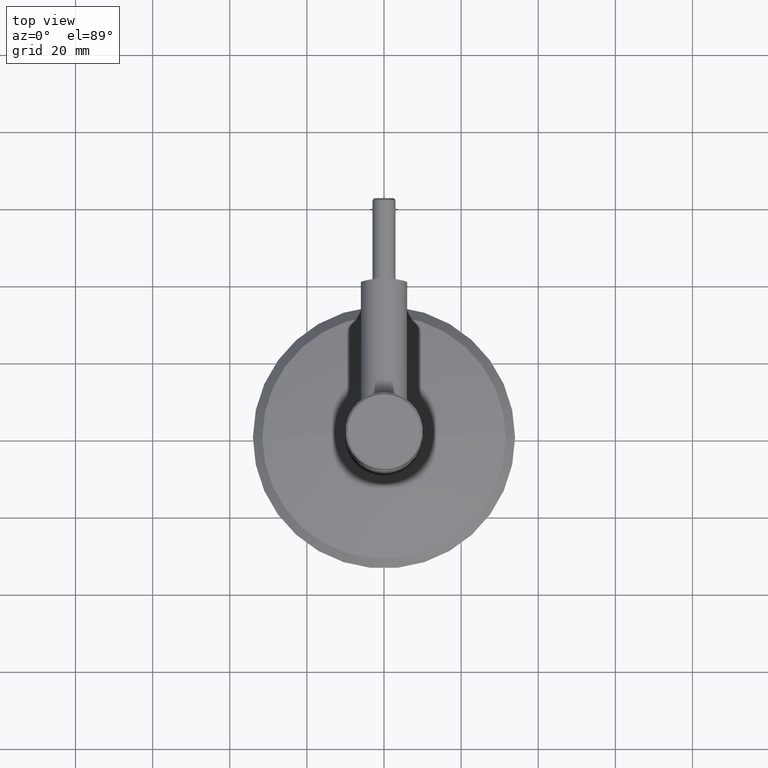
[diagram: clean part render]
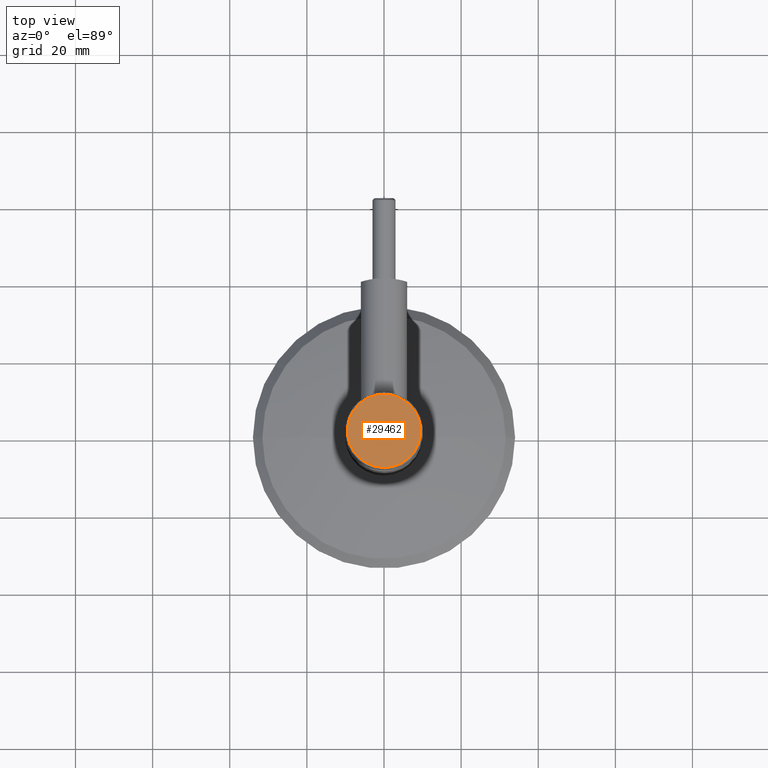
[diagram: same view with one face highlighted and labeled with its STEP entity id]
A machine part, top view. The second image highlights one B-rep face of the part: STEP entity #29462.
In plain terms, the highlighted planar face has unit normal (0, -0, 1).
Its self-contained STEP definition (entity closure, byte-faithful):
#721 = CARTESIAN_POINT ( 'NONE',  ( 0.000000000000000000, -1.163414459189985643E-14, 95.00000000000000000 ) ) ;
#851 = EDGE_CURVE ( 'NONE', #24403, #29999, #15397, .T. ) ;
#898 = CARTESIAN_POINT ( 'NONE',  ( 1.194030629168664736E-15, -9.499999999999943157, 95.00000000000000000 ) ) ;
#1454 = EDGE_CURVE ( 'NONE', #29999, #24403, #14993, .T. ) ;
#1901 = FACE_OUTER_BOUND ( 'NONE', #2661, .T. ) ;
#2661 = EDGE_LOOP ( 'NONE', ( #27194, #27701 ) ) ;
#4789 = CARTESIAN_POINT ( 'NONE',  ( 0.000000000000000000, -1.163414459189985801E-14, 95.00000000000000000 ) ) ;
#6928 = DIRECTION ( 'NONE',  ( 0.000000000000000000, -1.000000000000000000, 0.000000000000000000 ) ) ;
#7931 = AXIS2_PLACEMENT_3D ( 'NONE', #721, #8125, #30026 ) ;
#8125 = DIRECTION ( 'NONE',  ( 0.000000000000000000, -1.224646799147353454E-16, 1.000000000000000000 ) ) ;
#9602 = AXIS2_PLACEMENT_3D ( 'NONE', #4789, #12078, #19665 ) ;
#10410 = CARTESIAN_POINT ( 'NONE',  ( 0.000000000000000000, 9.499999999999918288, 95.00000000000000000 ) ) ;
#12078 = DIRECTION ( 'NONE',  ( 0.000000000000000000, -1.224646799147353454E-16, 1.000000000000000000 ) ) ;
#14993 = CIRCLE ( 'NONE', #9602, 9.499999999999930722 ) ;
#15397 = CIRCLE ( 'NONE', #21683, 9.499999999999930722 ) ;
#19665 = DIRECTION ( 'NONE',  ( 0.000000000000000000, -1.000000000000000000, 0.000000000000000000 ) ) ;
#21683 = AXIS2_PLACEMENT_3D ( 'NONE', #28626, #26188, #6928 ) ;
#24403 = VERTEX_POINT ( 'NONE', #10410 ) ;
#26188 = DIRECTION ( 'NONE',  ( 0.000000000000000000, -1.224646799147353454E-16, 1.000000000000000000 ) ) ;
#27194 = ORIENTED_EDGE ( 'NONE', *, *, #851, .T. ) ;
#27593 = PLANE ( 'NONE',  #7931 ) ;
#27701 = ORIENTED_EDGE ( 'NONE', *, *, #1454, .T. ) ;
#28626 = CARTESIAN_POINT ( 'NONE',  ( 0.000000000000000000, -1.163414459189985801E-14, 95.00000000000000000 ) ) ;
#29462 = ADVANCED_FACE ( 'NONE', ( #1901 ), #27593, .T. ) ;
#29999 = VERTEX_POINT ( 'NONE', #898 ) ;
#30026 = DIRECTION ( 'NONE',  ( 0.000000000000000000, -1.000000000000000000, -1.224646799147353454E-16 ) ) ;